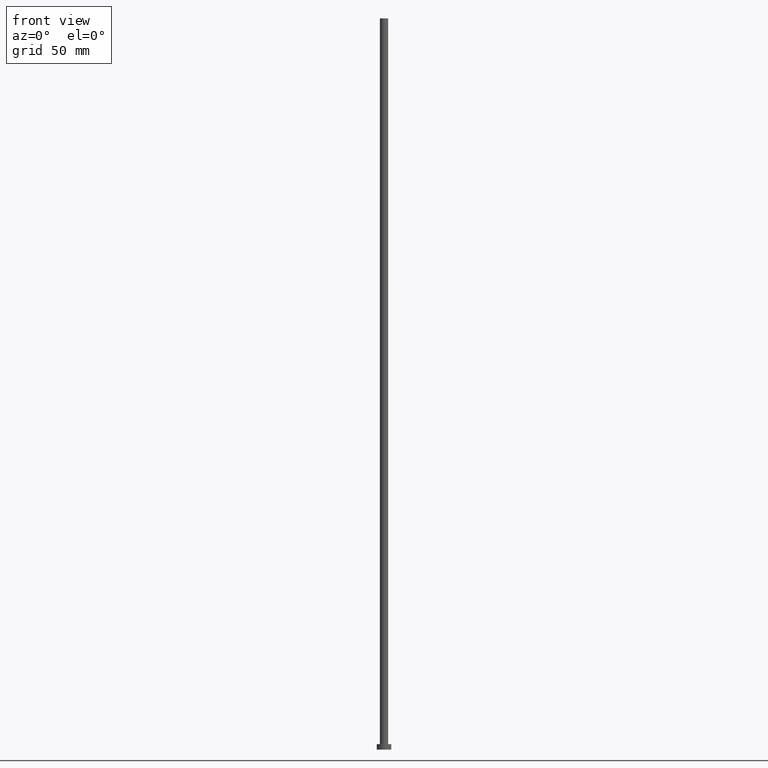
[diagram: clean part render]
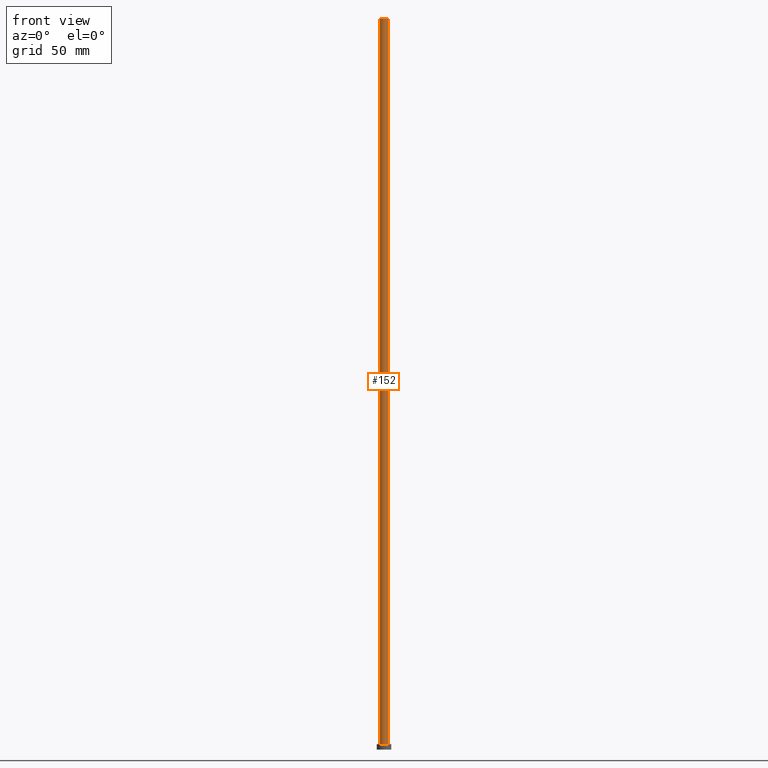
[diagram: same view with one face highlighted and labeled with its STEP entity id]
A machine part, front view. The second image highlights one B-rep face of the part: STEP entity #152.
In plain terms, the highlighted cylindrical surface (edge-blend (fillet) strip) has radius 2.25 mm, axis along (-0, -0, -1).
Its self-contained STEP definition (entity closure, byte-faithful):
#12 = ORIENTED_EDGE ( 'NONE', *, *, #149, .T. ) ;
#14 = EDGE_CURVE ( 'NONE', #211, #113, #41, .T. ) ;
#16 = LINE ( 'NONE', #90, #196 ) ;
#24 = ORIENTED_EDGE ( 'NONE', *, *, #36, .F. ) ;
#31 = VERTEX_POINT ( 'NONE', #161 ) ;
#36 = EDGE_CURVE ( 'NONE', #31, #52, #233, .T. ) ;
#41 = CIRCLE ( 'NONE', #56, 2.250000000000000000 ) ;
#43 = DIRECTION ( 'NONE',  ( -0.000000000000000000, -0.000000000000000000, -1.000000000000000000 ) ) ;
#52 = VERTEX_POINT ( 'NONE', #75 ) ;
#56 = AXIS2_PLACEMENT_3D ( 'NONE', #164, #250, #70 ) ;
#57 = CARTESIAN_POINT ( 'NONE',  ( 2.250000000000000000, 2.755455298081544285E-16, 3.000000000000000000 ) ) ;
#68 = CYLINDRICAL_SURFACE ( 'NONE', #79, 2.250000000000000000 ) ;
#70 = DIRECTION ( 'NONE',  ( 1.000000000000000000, 0.000000000000000000, 0.000000000000000000 ) ) ;
#75 = CARTESIAN_POINT ( 'NONE',  ( 2.250000000000000000, 2.755455298081544285E-16, 400.0000000000000000 ) ) ;
#79 = AXIS2_PLACEMENT_3D ( 'NONE', #136, #133, #85 ) ;
#85 = DIRECTION ( 'NONE',  ( -1.000000000000000000, 0.000000000000000000, 0.000000000000000000 ) ) ;
#90 = CARTESIAN_POINT ( 'NONE',  ( -2.250000000000000000, 0.000000000000000000, 400.0000000000000000 ) ) ;
#96 = DIRECTION ( 'NONE',  ( 0.000000000000000000, 0.000000000000000000, 1.000000000000000000 ) ) ;
#106 = FACE_OUTER_BOUND ( 'NONE', #137, .T. ) ;
#112 = LINE ( 'NONE', #130, #243 ) ;
#113 = VERTEX_POINT ( 'NONE', #57 ) ;
#116 = DIRECTION ( 'NONE',  ( 1.000000000000000000, 0.000000000000000000, 0.000000000000000000 ) ) ;
#123 = AXIS2_PLACEMENT_3D ( 'NONE', #218, #96, #116 ) ;
#130 = CARTESIAN_POINT ( 'NONE',  ( 2.250000000000000000, 2.755455298081544285E-16, 400.0000000000000000 ) ) ;
#133 = DIRECTION ( 'NONE',  ( -0.000000000000000000, -0.000000000000000000, -1.000000000000000000 ) ) ;
#136 = CARTESIAN_POINT ( 'NONE',  ( 0.000000000000000000, 0.000000000000000000, 400.0000000000000000 ) ) ;
#137 = EDGE_LOOP ( 'NONE', ( #197, #24, #12, #173 ) ) ;
#149 = EDGE_CURVE ( 'NONE', #31, #211, #16, .T. ) ;
#152 = ADVANCED_FACE ( 'NONE', ( #106 ), #68, .T. ) ;
#161 = CARTESIAN_POINT ( 'NONE',  ( -2.250000000000000000, 0.000000000000000000, 400.0000000000000000 ) ) ;
#164 = CARTESIAN_POINT ( 'NONE',  ( 0.000000000000000000, 0.000000000000000000, 3.000000000000000000 ) ) ;
#173 = ORIENTED_EDGE ( 'NONE', *, *, #14, .T. ) ;
#196 = VECTOR ( 'NONE', #229, 1000.000000000000000 ) ;
#197 = ORIENTED_EDGE ( 'NONE', *, *, #255, .F. ) ;
#211 = VERTEX_POINT ( 'NONE', #230 ) ;
#218 = CARTESIAN_POINT ( 'NONE',  ( 0.000000000000000000, 0.000000000000000000, 400.0000000000000000 ) ) ;
#229 = DIRECTION ( 'NONE',  ( -0.000000000000000000, -0.000000000000000000, -1.000000000000000000 ) ) ;
#230 = CARTESIAN_POINT ( 'NONE',  ( -2.250000000000000000, 0.000000000000000000, 3.000000000000000000 ) ) ;
#233 = CIRCLE ( 'NONE', #123, 2.250000000000000000 ) ;
#243 = VECTOR ( 'NONE', #43, 1000.000000000000000 ) ;
#250 = DIRECTION ( 'NONE',  ( 0.000000000000000000, 0.000000000000000000, 1.000000000000000000 ) ) ;
#255 = EDGE_CURVE ( 'NONE', #52, #113, #112, .T. ) ;